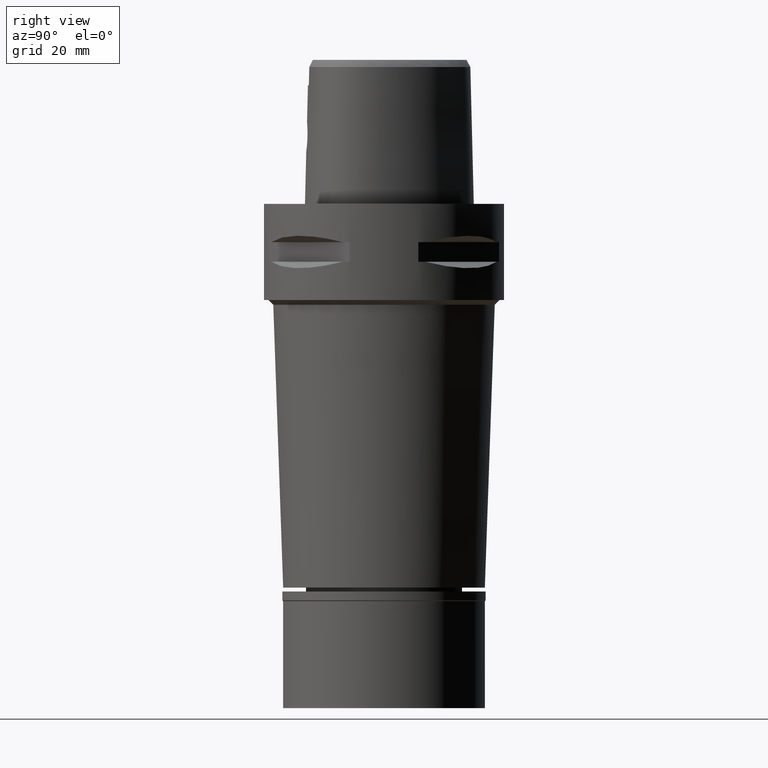
[diagram: clean part render]
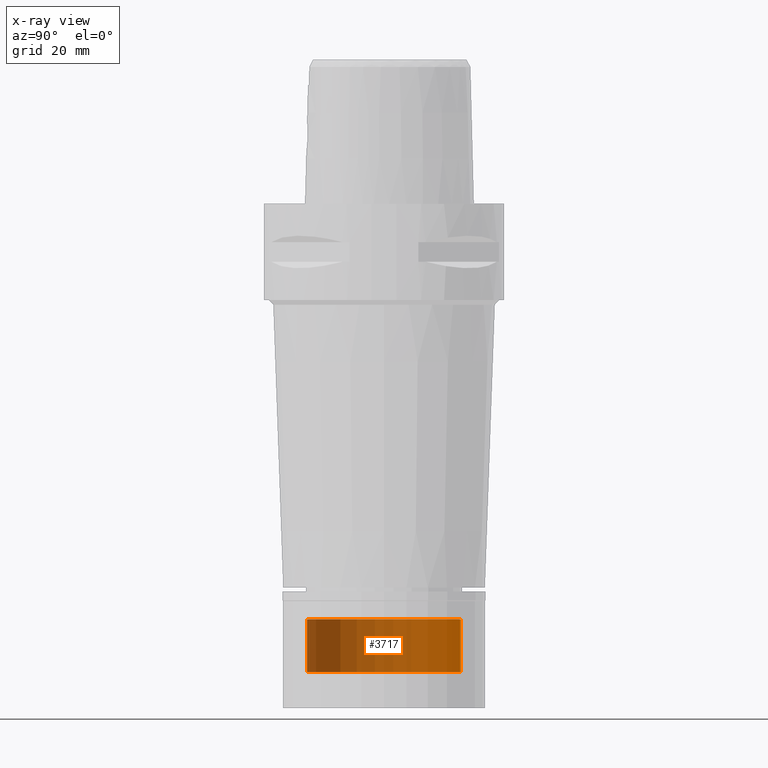
[diagram: x-ray — body ghosted, one internal face saturated and labeled with its STEP entity id]
A machine part, right view, then the same camera in x-ray: the body is ghosted and one INTERNAL B-rep face — a face not visible from any outside direction — is saturated and labeled: STEP entity #3717.
In plain terms, the highlighted cylindrical surface (partial cylindrical patch) has radius 16 mm, axis along (0, 0, -1).
Its self-contained STEP definition (entity closure, byte-faithful):
#150 = VECTOR ( 'NONE', #911, 1000.000000000000000 ) ;
#235 = AXIS2_PLACEMENT_3D ( 'NONE', #3017, #3376, #662 ) ;
#292 = CIRCLE ( 'NONE', #4691, 16.00000000000000000 ) ;
#365 = ORIENTED_EDGE ( 'NONE', *, *, #3499, .T. ) ;
#437 = AXIS2_PLACEMENT_3D ( 'NONE', #1076, #888, #3157 ) ;
#446 = VERTEX_POINT ( 'NONE', #2029 ) ;
#481 = VERTEX_POINT ( 'NONE', #3920 ) ;
#662 = DIRECTION ( 'NONE',  ( 0.0000000000000000000, 1.000000000000000000, 0.0000000000000000000 ) ) ;
#888 = DIRECTION ( 'NONE',  ( 0.0000000000000000000, 0.0000000000000000000, -1.000000000000000000 ) ) ;
#911 = DIRECTION ( 'NONE',  ( 0.0000000000000000000, 0.0000000000000000000, -1.000000000000000000 ) ) ;
#991 = VECTOR ( 'NONE', #2272, 1000.000000000000000 ) ;
#1076 = CARTESIAN_POINT ( 'NONE',  ( 0.0000000000000000000, 1.284348330606000068E-14, 4.875000000000000000 ) ) ;
#1296 = CARTESIAN_POINT ( 'NONE',  ( 0.0000000000000000000, 16.00000000000000000, -86.50000000000000000 ) ) ;
#1335 = ORIENTED_EDGE ( 'NONE', *, *, #1633, .F. ) ;
#1439 = FACE_OUTER_BOUND ( 'NONE', #2543, .T. ) ;
#1545 = CARTESIAN_POINT ( 'NONE',  ( 0.0000000000000000000, 16.00000000000000000, -97.50000000000000000 ) ) ;
#1633 = EDGE_CURVE ( 'NONE', #446, #481, #2316, .T. ) ;
#1656 = LINE ( 'NONE', #3953, #150 ) ;
#2029 = CARTESIAN_POINT ( 'NONE',  ( 0.0000000000000000000, -16.00000000000000000, -86.50000000000000000 ) ) ;
#2144 = CARTESIAN_POINT ( 'NONE',  ( 0.0000000000000000000, 1.284348330606000068E-14, -86.50000000000000000 ) ) ;
#2272 = DIRECTION ( 'NONE',  ( 0.0000000000000000000, 0.0000000000000000000, -1.000000000000000000 ) ) ;
#2285 = VERTEX_POINT ( 'NONE', #1545 ) ;
#2292 = ORIENTED_EDGE ( 'NONE', *, *, #4510, .T. ) ;
#2316 = LINE ( 'NONE', #2557, #991 ) ;
#2543 = EDGE_LOOP ( 'NONE', ( #2292, #1335, #365, #3852 ) ) ;
#2557 = CARTESIAN_POINT ( 'NONE',  ( 0.0000000000000000000, -16.00000000000000000, -86.50000000000000000 ) ) ;
#2879 = DIRECTION ( 'NONE',  ( 0.0000000000000000000, 0.0000000000000000000, -1.000000000000000000 ) ) ;
#2935 = DIRECTION ( 'NONE',  ( 0.0000000000000000000, -1.000000000000000000, 0.0000000000000000000 ) ) ;
#3017 = CARTESIAN_POINT ( 'NONE',  ( 0.0000000000000000000, 1.284348330606000068E-14, -97.50000000000000000 ) ) ;
#3157 = DIRECTION ( 'NONE',  ( 0.0000000000000000000, -1.000000000000000000, 0.0000000000000000000 ) ) ;
#3286 = VERTEX_POINT ( 'NONE', #1296 ) ;
#3376 = DIRECTION ( 'NONE',  ( 0.0000000000000000000, 0.0000000000000000000, 1.000000000000000000 ) ) ;
#3499 = EDGE_CURVE ( 'NONE', #446, #3286, #292, .T. ) ;
#3717 = ADVANCED_FACE ( 'NONE', ( #1439 ), #4465, .T. ) ;
#3830 = EDGE_CURVE ( 'NONE', #3286, #2285, #1656, .T. ) ;
#3852 = ORIENTED_EDGE ( 'NONE', *, *, #3830, .T. ) ;
#3920 = CARTESIAN_POINT ( 'NONE',  ( 0.0000000000000000000, -16.00000000000000000, -97.50000000000000000 ) ) ;
#3953 = CARTESIAN_POINT ( 'NONE',  ( 0.0000000000000000000, 16.00000000000000000, -86.50000000000000000 ) ) ;
#4465 = CYLINDRICAL_SURFACE ( 'NONE', #437, 16.00000000000000000 ) ;
#4510 = EDGE_CURVE ( 'NONE', #2285, #481, #4810, .T. ) ;
#4691 = AXIS2_PLACEMENT_3D ( 'NONE', #2144, #2879, #2935 ) ;
#4810 = CIRCLE ( 'NONE', #235, 16.00000000000000000 ) ;